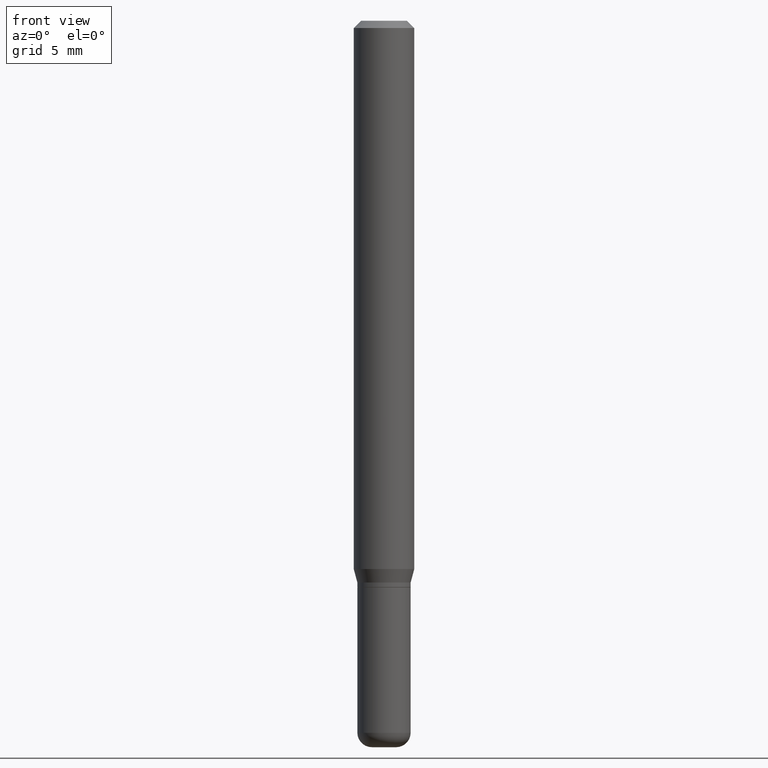
[diagram: clean part render]
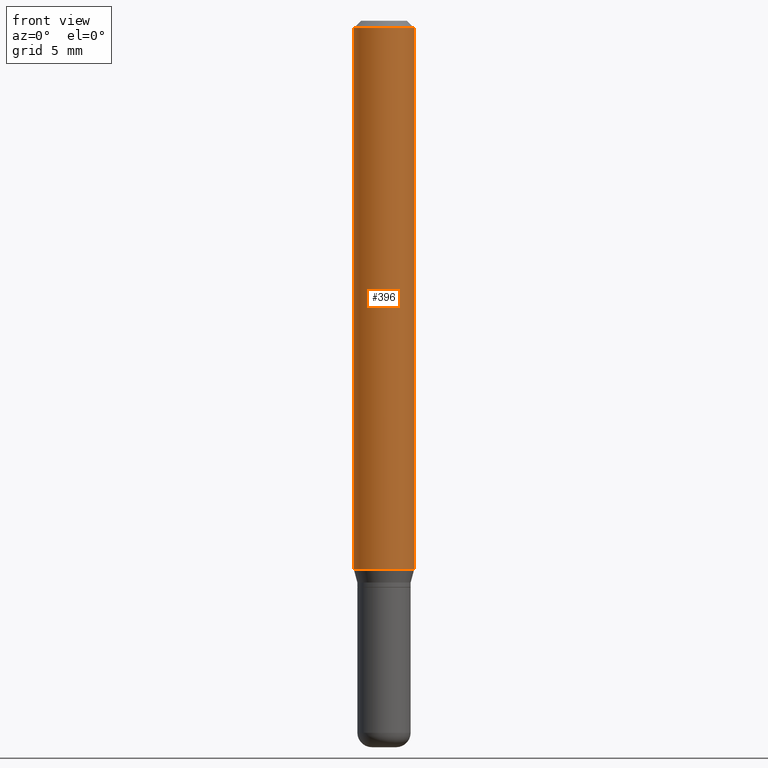
[diagram: same view with one face highlighted and labeled with its STEP entity id]
A machine part, front view. The second image highlights one B-rep face of the part: STEP entity #396.
In plain terms, the highlighted cylindrical surface (edge-blend (fillet) strip) has radius 1.5875 mm, axis along (-0, 0, 1).
Its self-contained STEP definition (entity closure, byte-faithful):
#6 = DIRECTION ( 'NONE',  ( -2.445468806185136877E-29, 3.491481338843145188E-15, 1.000000000000000000 ) ) ;
#10 = VERTEX_POINT ( 'NONE', #172 ) ;
#21 = DIRECTION ( 'NONE',  ( -2.445468806185136597E-29, 3.491481338843145583E-15, 1.000000000000000000 ) ) ;
#39 = CARTESIAN_POINT ( 'NONE',  ( -0.06250000000000000000, -1.558292130156881494E-15, -0.01499999999999970281 ) ) ;
#41 = CARTESIAN_POINT ( 'NONE',  ( 0.06250000000000000000, -4.888073874380378612E-16, -0.01499999999999970281 ) ) ;
#51 = DIRECTION ( 'NONE',  ( 1.000000000000000000, -6.982962677686266711E-15, 0.000000000000000000 ) ) ;
#60 = EDGE_CURVE ( 'NONE', #10, #345, #294, .T. ) ;
#67 = DIRECTION ( 'NONE',  ( -2.445468806185136877E-29, 3.491481338843145188E-15, 1.000000000000000000 ) ) ;
#74 = AXIS2_PLACEMENT_3D ( 'NONE', #338, #295, #459 ) ;
#97 = CIRCLE ( 'NONE', #483, 0.06250000000000000000 ) ;
#111 = DIRECTION ( 'NONE',  ( -2.445468806185136597E-29, 3.491481338843145583E-15, 1.000000000000000000 ) ) ;
#116 = LINE ( 'NONE', #274, #361 ) ;
#120 = VERTEX_POINT ( 'NONE', #41 ) ;
#149 = CIRCLE ( 'NONE', #453, 0.06250000000000000000 ) ;
#171 = CYLINDRICAL_SURFACE ( 'NONE', #74, 0.06250000000000000000 ) ;
#172 = CARTESIAN_POINT ( 'NONE',  ( -0.06250000000000000000, -3.508301250081179708E-15, -1.132009618943234042 ) ) ;
#177 = EDGE_LOOP ( 'NONE', ( #203, #451, #431, #329 ) ) ;
#186 = CARTESIAN_POINT ( 'NONE',  ( 2.768294211427201767E-29, -3.952390459931241535E-15, -1.132009618943234042 ) ) ;
#199 = CARTESIAN_POINT ( 'NONE',  ( -0.06250000000000000000, 4.440892098500626162E-16, -3.074334431409316114E-30 ) ) ;
#203 = ORIENTED_EDGE ( 'NONE', *, *, #60, .F. ) ;
#204 = EDGE_CURVE ( 'NONE', #414, #120, #116, .T. ) ;
#216 = VECTOR ( 'NONE', #6, 39.37007874015748143 ) ;
#221 = FACE_OUTER_BOUND ( 'NONE', #177, .T. ) ;
#223 = CARTESIAN_POINT ( 'NONE',  ( 3.668203209277632395E-31, -5.237222008264614861E-17, -0.01499999999999970281 ) ) ;
#261 = EDGE_CURVE ( 'NONE', #10, #414, #97, .T. ) ;
#274 = CARTESIAN_POINT ( 'NONE',  ( 0.06250000000000000000, -4.364351673553916694E-16, 3.047610484872459871E-30 ) ) ;
#294 = LINE ( 'NONE', #199, #216 ) ;
#295 = DIRECTION ( 'NONE',  ( -2.445468806185136597E-29, 3.491481338843145583E-15, 1.000000000000000000 ) ) ;
#329 = ORIENTED_EDGE ( 'NONE', *, *, #439, .F. ) ;
#338 = CARTESIAN_POINT ( 'NONE',  ( 0.000000000000000000, 0.000000000000000000, 0.000000000000000000 ) ) ;
#345 = VERTEX_POINT ( 'NONE', #39 ) ;
#361 = VECTOR ( 'NONE', #67, 39.37007874015748143 ) ;
#396 = ADVANCED_FACE ( 'NONE', ( #221 ), #171, .T. ) ;
#401 = DIRECTION ( 'NONE',  ( 1.000000000000000000, -6.982962677686270655E-15, 0.000000000000000000 ) ) ;
#414 = VERTEX_POINT ( 'NONE', #503 ) ;
#431 = ORIENTED_EDGE ( 'NONE', *, *, #204, .T. ) ;
#439 = EDGE_CURVE ( 'NONE', #345, #120, #149, .T. ) ;
#451 = ORIENTED_EDGE ( 'NONE', *, *, #261, .T. ) ;
#453 = AXIS2_PLACEMENT_3D ( 'NONE', #223, #21, #51 ) ;
#459 = DIRECTION ( 'NONE',  ( 1.000000000000000000, -6.982962677686266711E-15, 4.876176775795935793E-29 ) ) ;
#483 = AXIS2_PLACEMENT_3D ( 'NONE', #186, #111, #401 ) ;
#503 = CARTESIAN_POINT ( 'NONE',  ( 0.06250000000000000000, -4.388825627286632416E-15, -1.132009618943234042 ) ) ;